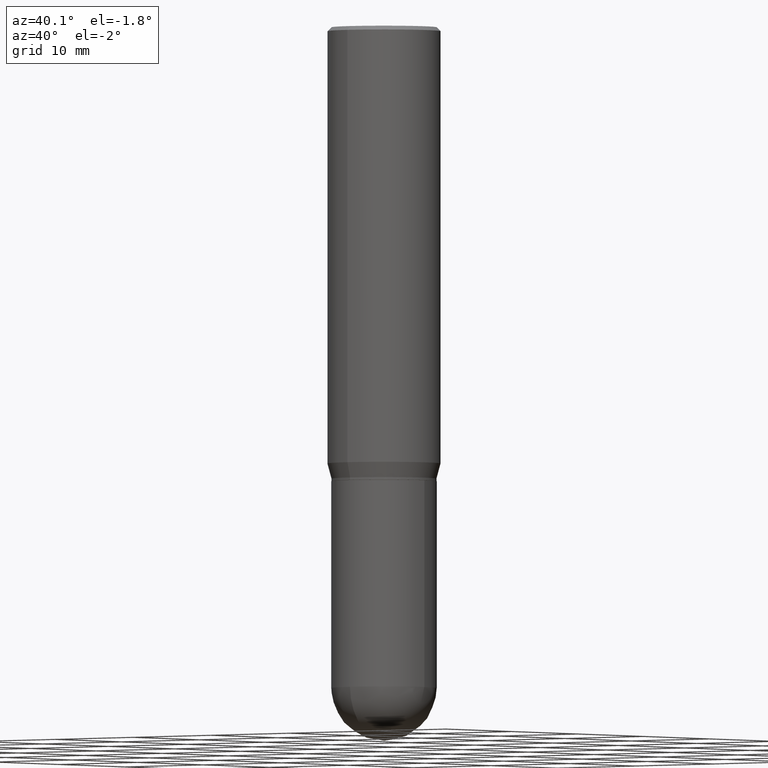
[diagram: clean part render]
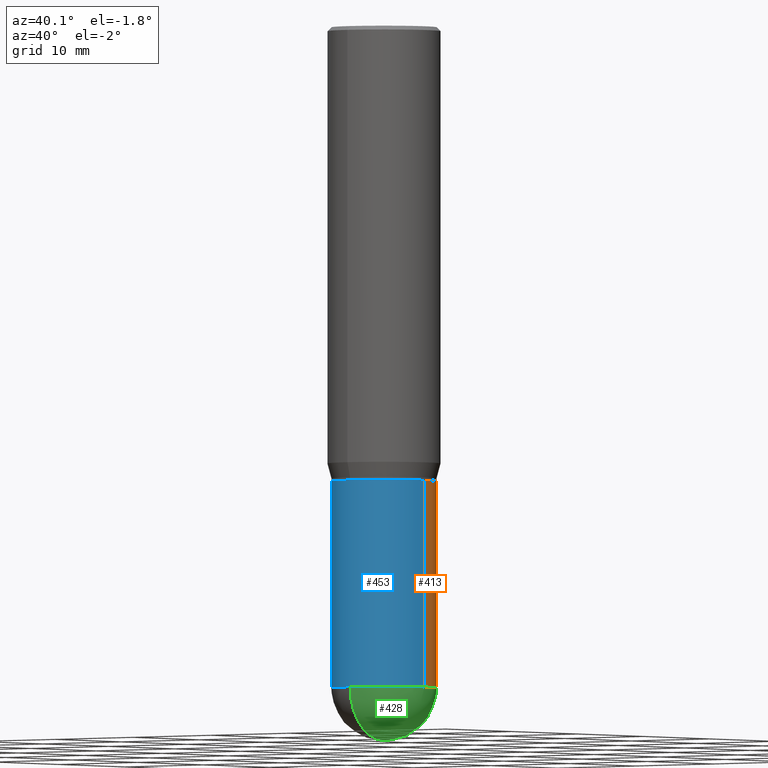
[diagram: same view with three faces highlighted in distinct colors, each labeled with its STEP entity id]
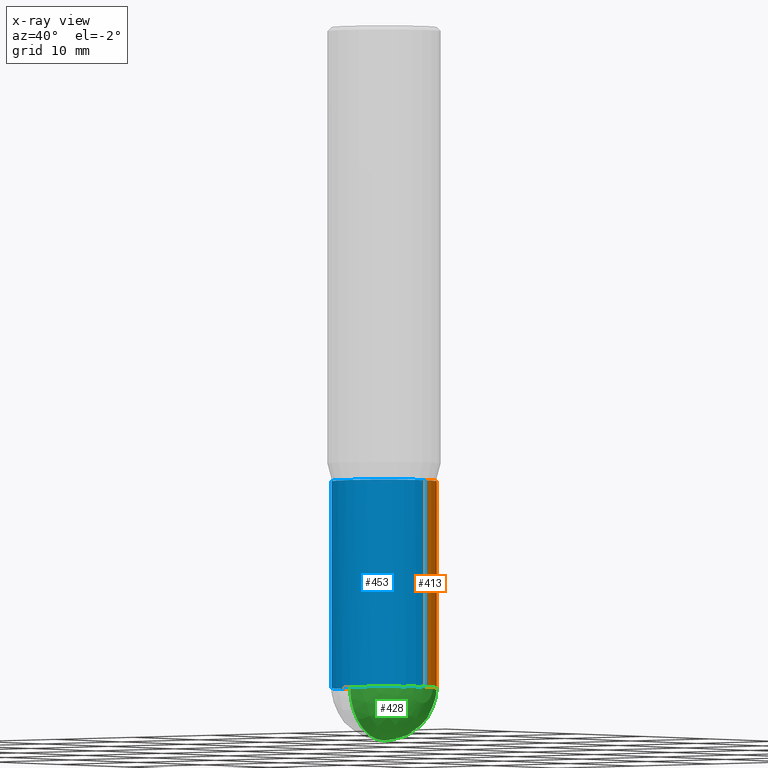
[diagram: x-ray of the same camera — body ghosted, the three highlighted faces saturated]
A machine part, auxiliary view with three faces highlighted in distinct colors.
The next image is the same camera in x-ray (body ghosted, the three faces saturated) — at least one of them is partly hidden behind the body in this view.
Their STEP definitions:

[orange] entity #413 — the highlighted cylindrical surface (partial cylindrical patch) has radius 5.1587 mm, axis along (-0, 0, 1).
#6 = CIRCLE ( 'NONE', #76, 0.2031000000000000583 ) ;
#8 = DIRECTION ( 'NONE',  ( 1.000000000000000000, -6.982962677686262766E-15, 0.000000000000000000 ) ) ;
#10 = EDGE_CURVE ( 'NONE', #110, #345, #64, .T. ) ;
#18 = AXIS2_PLACEMENT_3D ( 'NONE', #216, #94, #489 ) ;
#29 = VERTEX_POINT ( 'NONE', #159 ) ;
#42 = AXIS2_PLACEMENT_3D ( 'NONE', #353, #277, #243 ) ;
#50 = CIRCLE ( 'NONE', #18, 0.2031000000000000028 ) ;
#64 = LINE ( 'NONE', #154, #295 ) ;
#66 = DIRECTION ( 'NONE',  ( 1.000000000000000000, -6.982962677686266711E-15, 4.876176775795935793E-29 ) ) ;
#76 = AXIS2_PLACEMENT_3D ( 'NONE', #206, #360, #8 ) ;
#85 = EDGE_CURVE ( 'NONE', #29, #110, #153, .T. ) ;
#94 = DIRECTION ( 'NONE',  ( -2.445468806185136597E-29, 3.491481338843145583E-15, 1.000000000000000000 ) ) ;
#97 = CARTESIAN_POINT ( 'NONE',  ( -0.2031000000000000028, -6.058160786108792588E-15, -1.750000000000000000 ) ) ;
#110 = VERTEX_POINT ( 'NONE', #396 ) ;
#142 = CARTESIAN_POINT ( 'NONE',  ( 0.2031000000000000583, -8.919512802275635677E-15, -2.546899999999999942 ) ) ;
#150 = ORIENTED_EDGE ( 'NONE', *, *, #301, .F. ) ;
#152 = ORIENTED_EDGE ( 'NONE', *, *, #470, .F. ) ;
#153 = CIRCLE ( 'NONE', #42, 0.2031000000000000583 ) ;
#154 = CARTESIAN_POINT ( 'NONE',  ( -0.2031000000000000028, 1.443112296328763497E-15, -9.990357168307714203E-30 ) ) ;
#159 = CARTESIAN_POINT ( 'NONE',  ( 1.418239719838142898E-15, 0.2030999999999910932, -2.546900000000000830 ) ) ;
#195 = EDGE_CURVE ( 'NONE', #375, #29, #6, .T. ) ;
#206 = CARTESIAN_POINT ( 'NONE',  ( 6.228364502472924746E-29, -8.892453821899607499E-15, -2.546899999999999942 ) ) ;
#216 = CARTESIAN_POINT ( 'NONE',  ( 4.279570410823988484E-29, -6.110092342975504671E-15, -1.750000000000000000 ) ) ;
#217 = EDGE_LOOP ( 'NONE', ( #412, #300, #150, #152, #228 ) ) ;
#219 = FACE_OUTER_BOUND ( 'NONE', #217, .T. ) ;
#228 = ORIENTED_EDGE ( 'NONE', *, *, #195, .T. ) ;
#243 = DIRECTION ( 'NONE',  ( 1.000000000000000000, -6.982962677686262766E-15, 0.000000000000000000 ) ) ;
#267 = VERTEX_POINT ( 'NONE', #482 ) ;
#268 = DIRECTION ( 'NONE',  ( -2.445468806185136877E-29, 3.491481338843145188E-15, 1.000000000000000000 ) ) ;
#277 = DIRECTION ( 'NONE',  ( -2.445468806185136597E-29, 3.491481338843145583E-15, 1.000000000000000000 ) ) ;
#295 = VECTOR ( 'NONE', #424, 39.37007874015748143 ) ;
#300 = ORIENTED_EDGE ( 'NONE', *, *, #10, .T. ) ;
#301 = EDGE_CURVE ( 'NONE', #267, #345, #50, .T. ) ;
#330 = AXIS2_PLACEMENT_3D ( 'NONE', #388, #505, #66 ) ;
#345 = VERTEX_POINT ( 'NONE', #97 ) ;
#353 = CARTESIAN_POINT ( 'NONE',  ( 6.228364502472924746E-29, -8.892453821899607499E-15, -2.546899999999999942 ) ) ;
#360 = DIRECTION ( 'NONE',  ( -2.445468806185136597E-29, 3.491481338843145583E-15, 1.000000000000000000 ) ) ;
#375 = VERTEX_POINT ( 'NONE', #142 ) ;
#388 = CARTESIAN_POINT ( 'NONE',  ( 0.000000000000000000, 0.000000000000000000, 0.000000000000000000 ) ) ;
#396 = CARTESIAN_POINT ( 'NONE',  ( -0.2031000000000000583, -6.058160786108791010E-15, -2.546899999999999942 ) ) ;
#412 = ORIENTED_EDGE ( 'NONE', *, *, #85, .T. ) ;
#413 = ADVANCED_FACE ( 'NONE', ( #219 ), #421, .T. ) ;
#421 = CYLINDRICAL_SURFACE ( 'NONE', #330, 0.2031000000000000028 ) ;
#424 = DIRECTION ( 'NONE',  ( -2.445468806185136877E-29, 3.491481338843145188E-15, 1.000000000000000000 ) ) ;
#454 = CARTESIAN_POINT ( 'NONE',  ( 0.2031000000000000028, -1.418239719838080775E-15, 9.903515031641546145E-30 ) ) ;
#470 = EDGE_CURVE ( 'NONE', #375, #267, #499, .T. ) ;
#482 = CARTESIAN_POINT ( 'NONE',  ( 0.2031000000000000028, -7.528332062813585446E-15, -1.750000000000000000 ) ) ;
#487 = VECTOR ( 'NONE', #268, 39.37007874015748143 ) ;
#489 = DIRECTION ( 'NONE',  ( 1.000000000000000000, -6.982962677686269866E-15, 0.000000000000000000 ) ) ;
#499 = LINE ( 'NONE', #454, #487 ) ;
#505 = DIRECTION ( 'NONE',  ( -2.445468806185136597E-29, 3.491481338843145583E-15, 1.000000000000000000 ) ) ;

[blue] entity #453 — the highlighted cylindrical surface (partial cylindrical patch) has radius 5.1587 mm, axis along (-0, 0, 1).
#1 = AXIS2_PLACEMENT_3D ( 'NONE', #465, #270, #302 ) ;
#10 = EDGE_CURVE ( 'NONE', #110, #345, #64, .T. ) ;
#53 = ORIENTED_EDGE ( 'NONE', *, *, #131, .T. ) ;
#64 = LINE ( 'NONE', #154, #295 ) ;
#97 = CARTESIAN_POINT ( 'NONE',  ( -0.2031000000000000028, -6.058160786108792588E-15, -1.750000000000000000 ) ) ;
#99 = CIRCLE ( 'NONE', #273, 0.2031000000000000583 ) ;
#110 = VERTEX_POINT ( 'NONE', #396 ) ;
#111 = AXIS2_PLACEMENT_3D ( 'NONE', #223, #496, #463 ) ;
#131 = EDGE_CURVE ( 'NONE', #158, #375, #99, .T. ) ;
#142 = CARTESIAN_POINT ( 'NONE',  ( 0.2031000000000000583, -8.919512802275635677E-15, -2.546899999999999942 ) ) ;
#154 = CARTESIAN_POINT ( 'NONE',  ( -0.2031000000000000028, 1.443112296328763497E-15, -9.990357168307714203E-30 ) ) ;
#158 = VERTEX_POINT ( 'NONE', #349 ) ;
#190 = CYLINDRICAL_SURFACE ( 'NONE', #1, 0.2031000000000000028 ) ;
#196 = CARTESIAN_POINT ( 'NONE',  ( 6.228364502472924746E-29, -8.892453821899607499E-15, -2.546899999999999942 ) ) ;
#213 = CIRCLE ( 'NONE', #111, 0.2031000000000000028 ) ;
#223 = CARTESIAN_POINT ( 'NONE',  ( 4.279570410823988484E-29, -6.110092342975504671E-15, -1.750000000000000000 ) ) ;
#230 = DIRECTION ( 'NONE',  ( 1.000000000000000000, -6.982962677686262766E-15, 0.000000000000000000 ) ) ;
#261 = DIRECTION ( 'NONE',  ( -2.445468806185136597E-29, 3.491481338843145583E-15, 1.000000000000000000 ) ) ;
#267 = VERTEX_POINT ( 'NONE', #482 ) ;
#268 = DIRECTION ( 'NONE',  ( -2.445468806185136877E-29, 3.491481338843145188E-15, 1.000000000000000000 ) ) ;
#270 = DIRECTION ( 'NONE',  ( -2.445468806185136597E-29, 3.491481338843145583E-15, 1.000000000000000000 ) ) ;
#273 = AXIS2_PLACEMENT_3D ( 'NONE', #196, #473, #357 ) ;
#281 = CIRCLE ( 'NONE', #472, 0.2031000000000000583 ) ;
#295 = VECTOR ( 'NONE', #424, 39.37007874015748143 ) ;
#298 = ORIENTED_EDGE ( 'NONE', *, *, #10, .F. ) ;
#302 = DIRECTION ( 'NONE',  ( 1.000000000000000000, -6.982962677686266711E-15, 4.876176775795935793E-29 ) ) ;
#306 = ORIENTED_EDGE ( 'NONE', *, *, #470, .T. ) ;
#308 = EDGE_LOOP ( 'NONE', ( #298, #339, #53, #306, #420 ) ) ;
#339 = ORIENTED_EDGE ( 'NONE', *, *, #494, .T. ) ;
#344 = FACE_OUTER_BOUND ( 'NONE', #308, .T. ) ;
#345 = VERTEX_POINT ( 'NONE', #97 ) ;
#349 = CARTESIAN_POINT ( 'NONE',  ( -1.443112296328700980E-15, -0.2031000000000088845, -2.546899999999999498 ) ) ;
#357 = DIRECTION ( 'NONE',  ( 1.000000000000000000, -6.982962677686262766E-15, 0.000000000000000000 ) ) ;
#375 = VERTEX_POINT ( 'NONE', #142 ) ;
#384 = CARTESIAN_POINT ( 'NONE',  ( 6.228364502472924746E-29, -8.892453821899607499E-15, -2.546899999999999942 ) ) ;
#396 = CARTESIAN_POINT ( 'NONE',  ( -0.2031000000000000583, -6.058160786108791010E-15, -2.546899999999999942 ) ) ;
#420 = ORIENTED_EDGE ( 'NONE', *, *, #444, .F. ) ;
#424 = DIRECTION ( 'NONE',  ( -2.445468806185136877E-29, 3.491481338843145188E-15, 1.000000000000000000 ) ) ;
#444 = EDGE_CURVE ( 'NONE', #345, #267, #213, .T. ) ;
#453 = ADVANCED_FACE ( 'NONE', ( #344 ), #190, .T. ) ;
#454 = CARTESIAN_POINT ( 'NONE',  ( 0.2031000000000000028, -1.418239719838080775E-15, 9.903515031641546145E-30 ) ) ;
#463 = DIRECTION ( 'NONE',  ( 1.000000000000000000, -6.982962677686269866E-15, 0.000000000000000000 ) ) ;
#465 = CARTESIAN_POINT ( 'NONE',  ( 0.000000000000000000, 0.000000000000000000, 0.000000000000000000 ) ) ;
#470 = EDGE_CURVE ( 'NONE', #375, #267, #499, .T. ) ;
#472 = AXIS2_PLACEMENT_3D ( 'NONE', #384, #261, #230 ) ;
#473 = DIRECTION ( 'NONE',  ( -2.445468806185136597E-29, 3.491481338843145583E-15, 1.000000000000000000 ) ) ;
#482 = CARTESIAN_POINT ( 'NONE',  ( 0.2031000000000000028, -7.528332062813585446E-15, -1.750000000000000000 ) ) ;
#487 = VECTOR ( 'NONE', #268, 39.37007874015748143 ) ;
#494 = EDGE_CURVE ( 'NONE', #110, #158, #281, .T. ) ;
#496 = DIRECTION ( 'NONE',  ( -2.445468806185136597E-29, 3.491481338843145583E-15, 1.000000000000000000 ) ) ;
#499 = LINE ( 'NONE', #454, #487 ) ;

[green] entity #428 — the highlighted spherical surface has radius 5.1587 mm.
#6 = CIRCLE ( 'NONE', #76, 0.2031000000000000583 ) ;
#8 = DIRECTION ( 'NONE',  ( 1.000000000000000000, -6.982962677686262766E-15, 0.000000000000000000 ) ) ;
#9 = DIRECTION ( 'NONE',  ( -1.000000000000000000, 7.105427357601001070E-15, -4.926315508542082329E-29 ) ) ;
#29 = VERTEX_POINT ( 'NONE', #159 ) ;
#33 = CARTESIAN_POINT ( 'NONE',  ( 6.210996075139691695E-29, -8.917326398390289827E-15, -2.546899999999999942 ) ) ;
#45 = EDGE_CURVE ( 'NONE', #491, #29, #367, .T. ) ;
#54 = CARTESIAN_POINT ( 'NONE',  ( 6.210996075139691695E-29, -8.917326398390289827E-15, -2.546899999999999942 ) ) ;
#76 = AXIS2_PLACEMENT_3D ( 'NONE', #206, #360, #8 ) ;
#99 = CIRCLE ( 'NONE', #273, 0.2031000000000000583 ) ;
#102 = ORIENTED_EDGE ( 'NONE', *, *, #209, .F. ) ;
#106 = DIRECTION ( 'NONE',  ( -1.000000000000000000, 6.982962677686266711E-15, -4.883557194083112901E-29 ) ) ;
#120 = CIRCLE ( 'NONE', #199, 0.2030999999999999472 ) ;
#131 = EDGE_CURVE ( 'NONE', #158, #375, #99, .T. ) ;
#142 = CARTESIAN_POINT ( 'NONE',  ( 0.2031000000000000583, -8.919512802275635677E-15, -2.546899999999999942 ) ) ;
#151 = SPHERICAL_SURFACE ( 'NONE', #335, 0.2030999999999999472 ) ;
#158 = VERTEX_POINT ( 'NONE', #349 ) ;
#159 = CARTESIAN_POINT ( 'NONE',  ( 1.418239719838142898E-15, 0.2030999999999910932, -2.546900000000000830 ) ) ;
#185 = FACE_OUTER_BOUND ( 'NONE', #497, .T. ) ;
#193 = ORIENTED_EDGE ( 'NONE', *, *, #195, .F. ) ;
#195 = EDGE_CURVE ( 'NONE', #375, #29, #6, .T. ) ;
#196 = CARTESIAN_POINT ( 'NONE',  ( 6.228364502472924746E-29, -8.892453821899607499E-15, -2.546899999999999942 ) ) ;
#199 = AXIS2_PLACEMENT_3D ( 'NONE', #54, #9, #255 ) ;
#206 = CARTESIAN_POINT ( 'NONE',  ( 6.228364502472924746E-29, -8.892453821899607499E-15, -2.546899999999999942 ) ) ;
#209 = EDGE_CURVE ( 'NONE', #491, #158, #120, .T. ) ;
#255 = DIRECTION ( 'NONE',  ( -7.105427357601001070E-15, -1.000000000000000000, 0.000000000000000000 ) ) ;
#256 = ORIENTED_EDGE ( 'NONE', *, *, #45, .T. ) ;
#266 = CARTESIAN_POINT ( 'NONE',  ( 6.716355003342508555E-29, -9.614009970063991023E-15, -2.750000000000000000 ) ) ;
#273 = AXIS2_PLACEMENT_3D ( 'NONE', #196, #473, #357 ) ;
#287 = AXIS2_PLACEMENT_3D ( 'NONE', #476, #318, #439 ) ;
#297 = DIRECTION ( 'NONE',  ( 6.982962677686266711E-15, 1.000000000000000000, -2.690150658458162309E-15 ) ) ;
#318 = DIRECTION ( 'NONE',  ( 1.000000000000000000, -6.982962677686265922E-15, 4.883557194083112340E-29 ) ) ;
#335 = AXIS2_PLACEMENT_3D ( 'NONE', #33, #106, #297 ) ;
#349 = CARTESIAN_POINT ( 'NONE',  ( -1.443112296328700980E-15, -0.2031000000000088845, -2.546899999999999498 ) ) ;
#357 = DIRECTION ( 'NONE',  ( 1.000000000000000000, -6.982962677686262766E-15, 0.000000000000000000 ) ) ;
#360 = DIRECTION ( 'NONE',  ( -2.445468806185136597E-29, 3.491481338843145583E-15, 1.000000000000000000 ) ) ;
#367 = CIRCLE ( 'NONE', #287, 0.2030999999999999472 ) ;
#375 = VERTEX_POINT ( 'NONE', #142 ) ;
#428 = ADVANCED_FACE ( 'NONE', ( #185 ), #151, .T. ) ;
#439 = DIRECTION ( 'NONE',  ( 6.982962677686266711E-15, 1.000000000000000000, 0.000000000000000000 ) ) ;
#459 = ORIENTED_EDGE ( 'NONE', *, *, #131, .F. ) ;
#473 = DIRECTION ( 'NONE',  ( -2.445468806185136597E-29, 3.491481338843145583E-15, 1.000000000000000000 ) ) ;
#476 = CARTESIAN_POINT ( 'NONE',  ( 6.210996075139691695E-29, -8.917326398390289827E-15, -2.546899999999999942 ) ) ;
#491 = VERTEX_POINT ( 'NONE', #266 ) ;
#497 = EDGE_LOOP ( 'NONE', ( #102, #256, #193, #459 ) ) ;